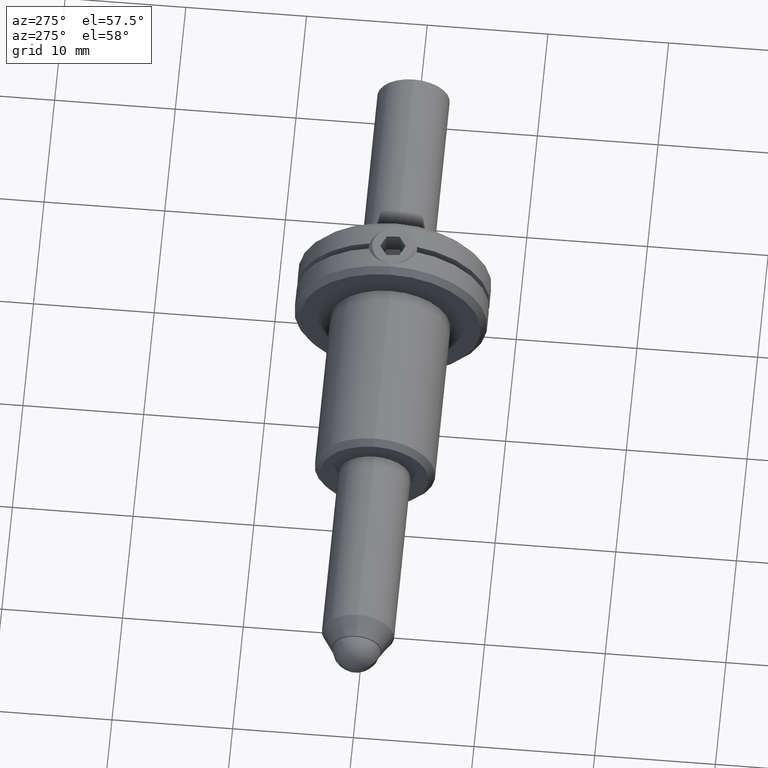
[diagram: clean part render]
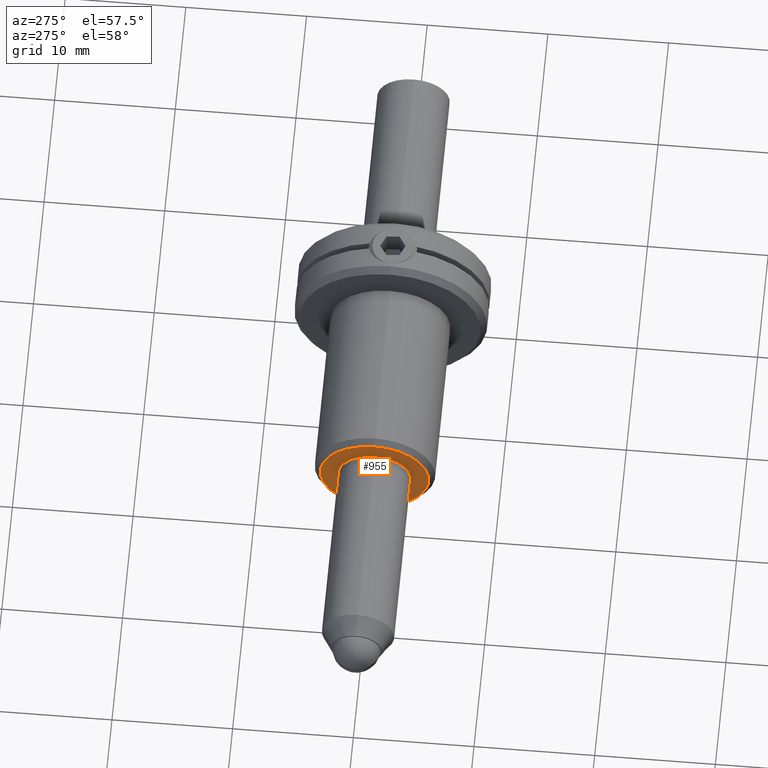
[diagram: same view with one face highlighted and labeled with its STEP entity id]
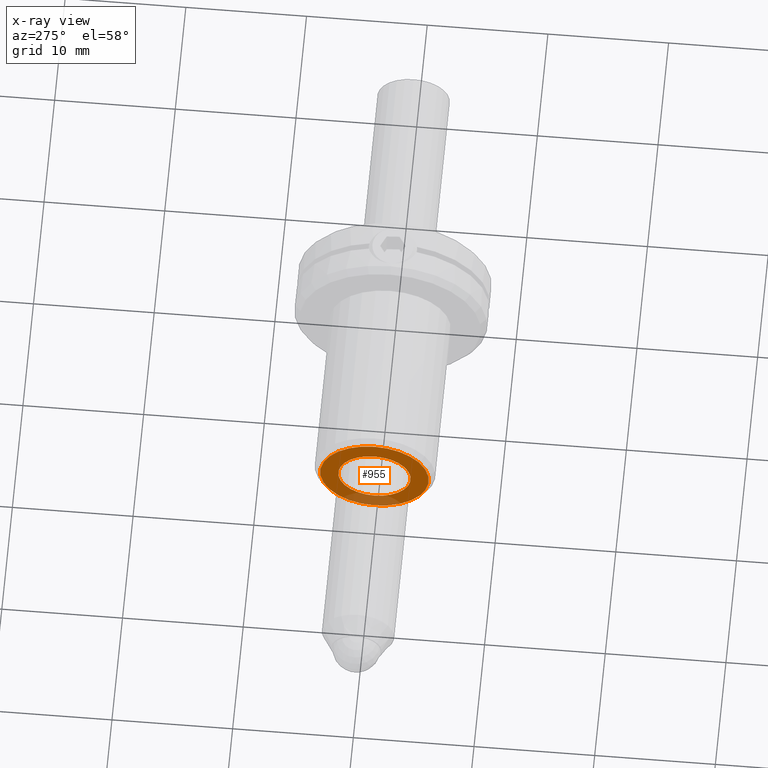
[diagram: x-ray of the same camera — body ghosted, the highlighted face saturated]
A machine part, auxiliary view. The second image highlights one B-rep face of the part: STEP entity #955.
The next image is the same camera in x-ray: the body ghosted, the highlighted face saturated — about 16% of this face is hidden behind the body in this view.
In plain terms, the highlighted planar face has unit normal (1, 0, -0).
Its self-contained STEP definition (entity closure, byte-faithful):
#30 = AXIS2_PLACEMENT_3D ( 'NONE', #330, #1523, #343 ) ;
#35 = FACE_BOUND ( 'NONE', #241, .T. ) ;
#53 = VERTEX_POINT ( 'NONE', #550 ) ;
#87 = AXIS2_PLACEMENT_3D ( 'NONE', #1683, #1821, #1837 ) ;
#117 = CIRCLE ( 'NONE', #1819, 4.500000000000000888 ) ;
#168 = CARTESIAN_POINT ( 'NONE',  ( -9.999999999999998224, 0.000000000000000000, 4.500000000000000888 ) ) ;
#183 = PLANE ( 'NONE',  #87 ) ;
#210 = CIRCLE ( 'NONE', #1108, 2.999999999999995559 ) ;
#241 = EDGE_LOOP ( 'NONE', ( #1698, #1211 ) ) ;
#262 = CARTESIAN_POINT ( 'NONE',  ( -9.999999999999998224, 0.000000000000000000, 0.000000000000000000 ) ) ;
#309 = VERTEX_POINT ( 'NONE', #168 ) ;
#330 = CARTESIAN_POINT ( 'NONE',  ( -9.999999999999998224, 0.000000000000000000, 0.000000000000000000 ) ) ;
#343 = DIRECTION ( 'NONE',  ( 0.000000000000000000, 0.000000000000000000, 1.000000000000000000 ) ) ;
#344 = CARTESIAN_POINT ( 'NONE',  ( -9.999999999999998224, 0.000000000000000000, 0.000000000000000000 ) ) ;
#370 = CARTESIAN_POINT ( 'NONE',  ( -9.999999999999998224, -5.817072295949927426E-16, -4.500000000000000888 ) ) ;
#507 = DIRECTION ( 'NONE',  ( 0.000000000000000000, 0.000000000000000000, 1.000000000000000000 ) ) ;
#550 = CARTESIAN_POINT ( 'NONE',  ( -9.999999999999998224, -3.673940397442054445E-16, 2.999999999999995559 ) ) ;
#564 = DIRECTION ( 'NONE',  ( -1.000000000000000000, -0.000000000000000000, -0.000000000000000000 ) ) ;
#614 = AXIS2_PLACEMENT_3D ( 'NONE', #344, #1481, #1803 ) ;
#663 = EDGE_CURVE ( 'NONE', #309, #761, #1135, .T. ) ;
#761 = VERTEX_POINT ( 'NONE', #370 ) ;
#769 = VERTEX_POINT ( 'NONE', #1680 ) ;
#776 = DIRECTION ( 'NONE',  ( 1.000000000000000000, 0.000000000000000000, 0.000000000000000000 ) ) ;
#881 = EDGE_CURVE ( 'NONE', #761, #309, #117, .T. ) ;
#921 = ORIENTED_EDGE ( 'NONE', *, *, #881, .T. ) ;
#948 = CIRCLE ( 'NONE', #30, 2.999999999999995559 ) ;
#955 = ADVANCED_FACE ( 'NONE', ( #35, #1675 ), #183, .F. ) ;
#965 = EDGE_CURVE ( 'NONE', #769, #53, #210, .T. ) ;
#1001 = ORIENTED_EDGE ( 'NONE', *, *, #663, .T. ) ;
#1108 = AXIS2_PLACEMENT_3D ( 'NONE', #1537, #776, #507 ) ;
#1135 = CIRCLE ( 'NONE', #614, 4.500000000000000888 ) ;
#1211 = ORIENTED_EDGE ( 'NONE', *, *, #1630, .T. ) ;
#1481 = DIRECTION ( 'NONE',  ( -1.000000000000000000, -0.000000000000000000, -0.000000000000000000 ) ) ;
#1523 = DIRECTION ( 'NONE',  ( 1.000000000000000000, 0.000000000000000000, 0.000000000000000000 ) ) ;
#1537 = CARTESIAN_POINT ( 'NONE',  ( -9.999999999999998224, 0.000000000000000000, 0.000000000000000000 ) ) ;
#1630 = EDGE_CURVE ( 'NONE', #53, #769, #948, .T. ) ;
#1675 = FACE_OUTER_BOUND ( 'NONE', #1703, .T. ) ;
#1680 = CARTESIAN_POINT ( 'NONE',  ( -9.999999999999998224, 0.000000000000000000, -2.999999999999995559 ) ) ;
#1683 = CARTESIAN_POINT ( 'NONE',  ( -9.999999999999998224, -4.999999999999998224, 0.000000000000000000 ) ) ;
#1698 = ORIENTED_EDGE ( 'NONE', *, *, #965, .T. ) ;
#1703 = EDGE_LOOP ( 'NONE', ( #1001, #921 ) ) ;
#1743 = DIRECTION ( 'NONE',  ( 0.000000000000000000, 0.000000000000000000, 1.000000000000000000 ) ) ;
#1803 = DIRECTION ( 'NONE',  ( 0.000000000000000000, 0.000000000000000000, 1.000000000000000000 ) ) ;
#1819 = AXIS2_PLACEMENT_3D ( 'NONE', #262, #564, #1743 ) ;
#1821 = DIRECTION ( 'NONE',  ( 1.000000000000000000, 0.000000000000000000, -0.000000000000000000 ) ) ;
#1837 = DIRECTION ( 'NONE',  ( 0.000000000000000000, 0.000000000000000000, 1.000000000000000000 ) ) ;